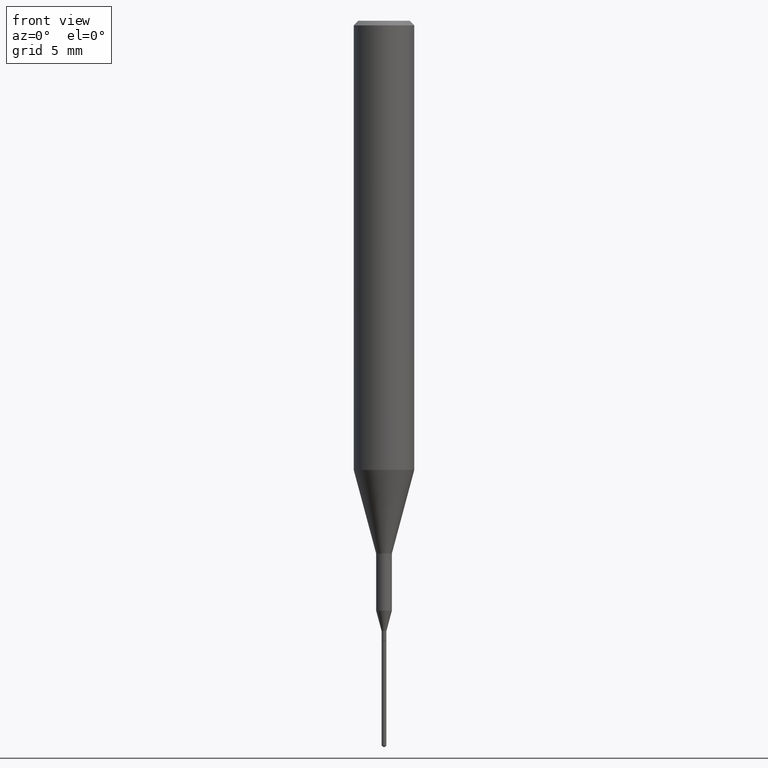
[diagram: clean part render]
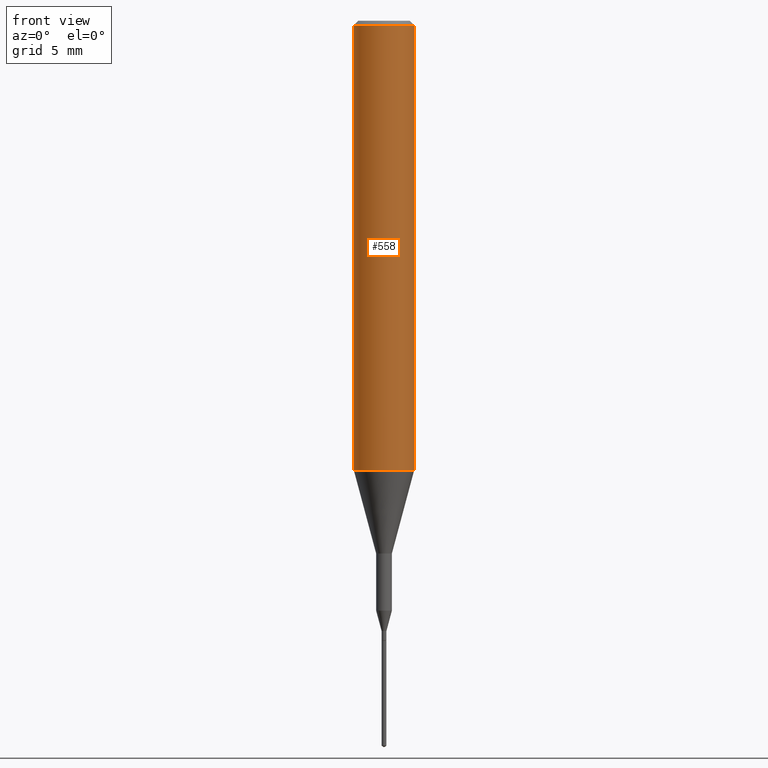
[diagram: same view with one face highlighted and labeled with its STEP entity id]
A machine part, front view. The second image highlights one B-rep face of the part: STEP entity #558.
In plain terms, the highlighted cylindrical surface (edge-blend (fillet) strip) has radius 1.5875 mm, axis along (-0, 0, 1).
Its self-contained STEP definition (entity closure, byte-faithful):
#11 = AXIS2_PLACEMENT_3D ( 'NONE', #416, #584, #493 ) ;
#15 = LINE ( 'NONE', #138, #185 ) ;
#27 = CARTESIAN_POINT ( 'NONE',  ( 0.06250000000000011102, -3.674409299134196572E-15, -0.9273926501499395458 ) ) ;
#33 = VERTEX_POINT ( 'NONE', #538 ) ;
#75 = ORIENTED_EDGE ( 'NONE', *, *, #218, .T. ) ;
#78 = CARTESIAN_POINT ( 'NONE',  ( 2.292627005798582375E-31, -3.273263755165473266E-17, -0.009375000000000069042 ) ) ;
#116 = ORIENTED_EDGE ( 'NONE', *, *, #541, .F. ) ;
#118 = EDGE_LOOP ( 'NONE', ( #116, #356, #75, #554 ) ) ;
#120 = AXIS2_PLACEMENT_3D ( 'NONE', #78, #165, #399 ) ;
#127 = CIRCLE ( 'NONE', #120, 0.06250000000000000000 ) ;
#138 = CARTESIAN_POINT ( 'NONE',  ( 0.06250000000000005551, -4.364351673553920638E-16, 3.047610484872462323E-30 ) ) ;
#165 = DIRECTION ( 'NONE',  ( -2.445468806185136597E-29, 3.491481338843145583E-15, 1.000000000000000000 ) ) ;
#185 = VECTOR ( 'NONE', #469, 39.37007874015748143 ) ;
#187 = EDGE_CURVE ( 'NONE', #33, #269, #496, .T. ) ;
#206 = VERTEX_POINT ( 'NONE', #423 ) ;
#218 = EDGE_CURVE ( 'NONE', #269, #404, #15, .T. ) ;
#225 = FACE_OUTER_BOUND ( 'NONE', #118, .T. ) ;
#263 = CYLINDRICAL_SURFACE ( 'NONE', #11, 0.06250000000000005551 ) ;
#269 = VERTEX_POINT ( 'NONE', #27 ) ;
#320 = DIRECTION ( 'NONE',  ( -2.445468806185136877E-29, 3.491481338843145188E-15, 1.000000000000000000 ) ) ;
#356 = ORIENTED_EDGE ( 'NONE', *, *, #187, .T. ) ;
#368 = AXIS2_PLACEMENT_3D ( 'NONE', #463, #549, #465 ) ;
#399 = DIRECTION ( 'NONE',  ( 1.000000000000000000, -6.982962677686266711E-15, 0.000000000000000000 ) ) ;
#404 = VERTEX_POINT ( 'NONE', #550 ) ;
#406 = CARTESIAN_POINT ( 'NONE',  ( -0.06250000000000005551, 4.440892098500630106E-16, -3.074334431409318916E-30 ) ) ;
#416 = CARTESIAN_POINT ( 'NONE',  ( 0.000000000000000000, 0.000000000000000000, 0.000000000000000000 ) ) ;
#423 = CARTESIAN_POINT ( 'NONE',  ( -0.06250000000000000000, -1.191264174815165938E-15, -0.009375000000000069042 ) ) ;
#463 = CARTESIAN_POINT ( 'NONE',  ( 2.267909797027042920E-29, -3.237974131778804114E-15, -0.9273926501499395458 ) ) ;
#465 = DIRECTION ( 'NONE',  ( 1.000000000000000000, -6.982962677686265922E-15, 0.000000000000000000 ) ) ;
#469 = DIRECTION ( 'NONE',  ( -2.445468806185136877E-29, 3.491481338843145188E-15, 1.000000000000000000 ) ) ;
#493 = DIRECTION ( 'NONE',  ( 1.000000000000000000, -6.982962677686266711E-15, 4.876176775795935232E-29 ) ) ;
#496 = CIRCLE ( 'NONE', #368, 0.06250000000000011102 ) ;
#524 = EDGE_CURVE ( 'NONE', #206, #404, #127, .T. ) ;
#534 = VECTOR ( 'NONE', #320, 39.37007874015748143 ) ;
#538 = CARTESIAN_POINT ( 'NONE',  ( -0.06250000000000011102, -2.793884921928740709E-15, -0.9273926501499395458 ) ) ;
#541 = EDGE_CURVE ( 'NONE', #33, #206, #577, .T. ) ;
#549 = DIRECTION ( 'NONE',  ( -2.445468806185136597E-29, 3.491481338843145583E-15, 1.000000000000000000 ) ) ;
#550 = CARTESIAN_POINT ( 'NONE',  ( 0.06250000000000000000, -4.691678049070464390E-16, -0.009375000000000069042 ) ) ;
#554 = ORIENTED_EDGE ( 'NONE', *, *, #524, .F. ) ;
#558 = ADVANCED_FACE ( 'NONE', ( #225 ), #263, .T. ) ;
#577 = LINE ( 'NONE', #406, #534 ) ;
#584 = DIRECTION ( 'NONE',  ( -2.445468806185136597E-29, 3.491481338843145583E-15, 1.000000000000000000 ) ) ;